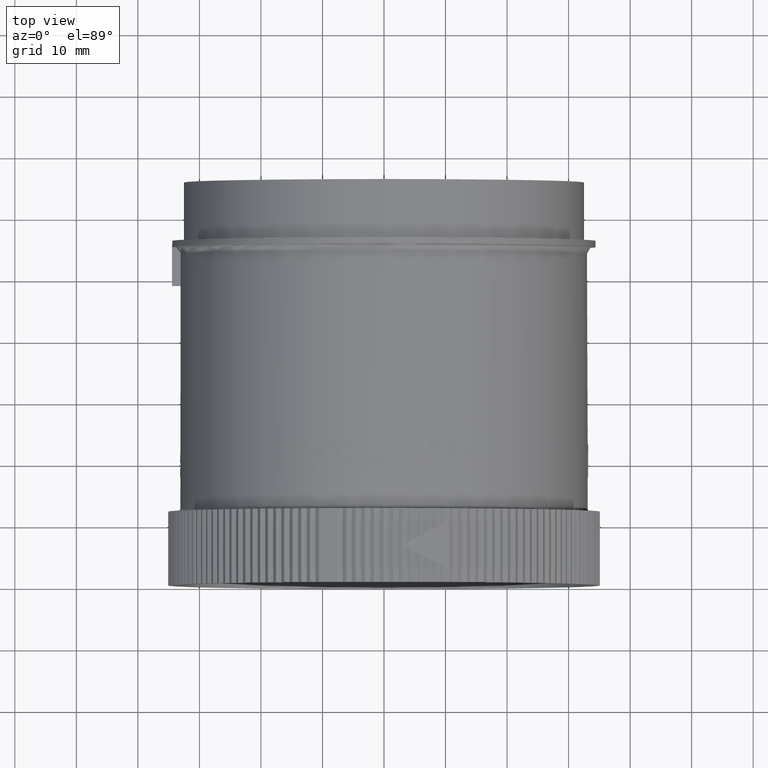
[diagram: clean part render]
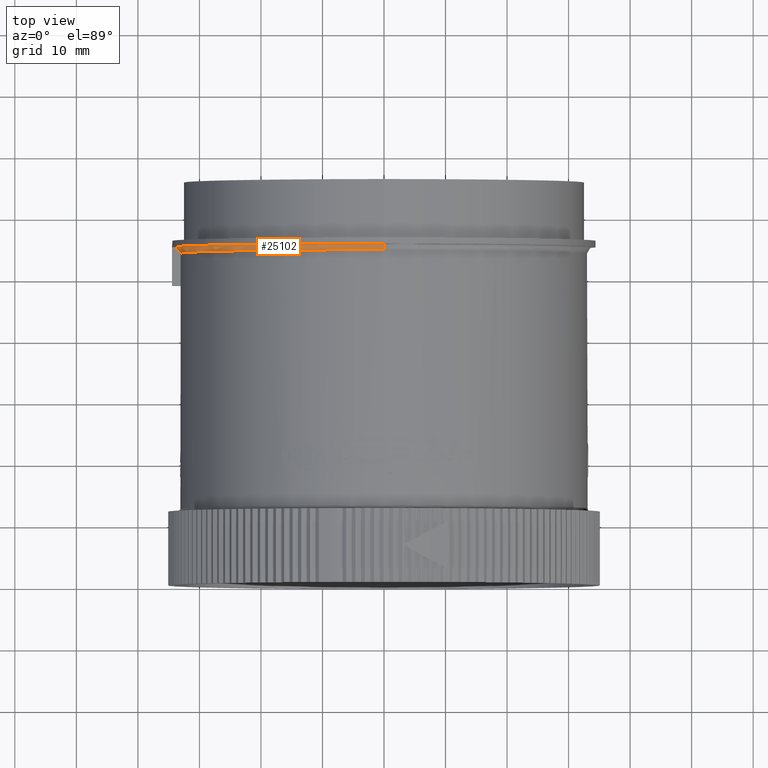
[diagram: same view with one face highlighted and labeled with its STEP entity id]
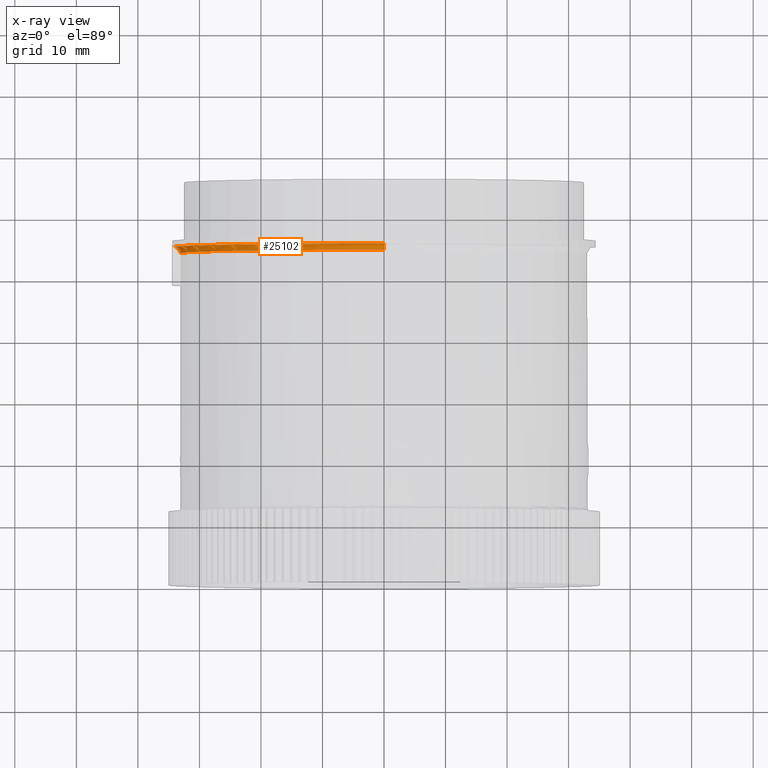
[diagram: x-ray of the same camera — body ghosted, the highlighted face saturated]
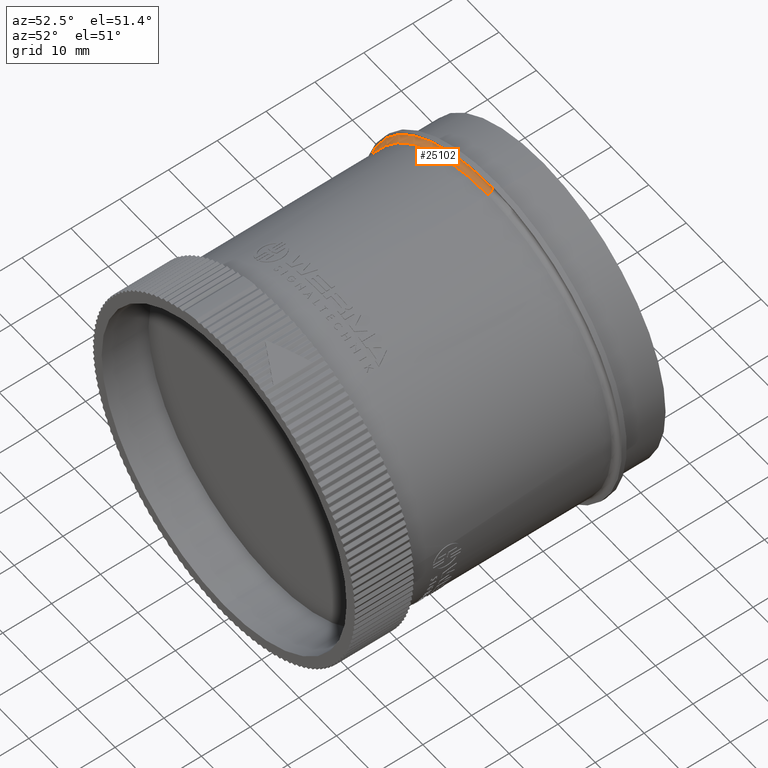
[diagram: same view with one face highlighted and labeled with its STEP entity id]
A machine part, top view. The second image highlights one B-rep face of the part: STEP entity #25102.
The next image is the same camera in x-ray: the body ghosted, the highlighted face saturated — about 0% of this face is hidden behind the body in this view.
A second angle (auxiliary view) of the same face is appended — the face is thin or edge-on in the first view.
In plain terms, the highlighted toroidal blend (fillet) surface has major radius 34.1 mm and minor (blend) radius 1 mm.
Its self-contained STEP definition (entity closure, byte-faithful):
#80 = CARTESIAN_POINT ( 'NONE',  ( -0.9742893487748062200, 2.165354330288136200, 0.9236530025202771600 ) ) ;
#238 = CARTESIAN_POINT ( 'NONE',  ( -1.019327514058452600, 2.165354330683337800, 0.8736901339705761500 ) ) ;
#419 = CARTESIAN_POINT ( 'NONE',  ( -1.100990989712407300, 2.165354326800601500, 0.7682610589161195100 ) ) ;
#583 = CARTESIAN_POINT ( 'NONE',  ( -1.325017869444645700, 2.165354330538104700, 0.2161023569294309700 ) ) ;
#777 = CARTESIAN_POINT ( 'NONE',  ( -1.340801292736586000, 2.165354330708661600, -0.06790433059908786200 ) ) ;
#2908 = DIRECTION ( 'NONE',  ( 1.000000000000000000, 0.0000000000000000000, -1.224646799147353200E-016 ) ) ;
#3207 = CARTESIAN_POINT ( 'NONE',  ( -0.04526540282493161200, 2.165354330703432000, 1.341947927770122300 ) ) ;
#3369 = CARTESIAN_POINT ( 'NONE',  ( -0.3010508282006850700, 2.165354330694854400, 1.308345169931262700 ) ) ;
#3547 = CARTESIAN_POINT ( 'NONE',  ( -0.6404438276518083000, 2.165354329249574100, 1.179924392264754200 ) ) ;
#3717 = CARTESIAN_POINT ( 'NONE',  ( -0.7877838488346390300, 2.165354330683646500, 1.087087958277496200 ) ) ;
#3886 = CARTESIAN_POINT ( 'NONE',  ( -0.9271624493506186400, 2.165354326937328500, 0.9709661784480271300 ) ) ;
#3981 = AXIS2_PLACEMENT_3D ( 'NONE', #26153, #2908, #30009 ) ;
#4035 = CARTESIAN_POINT ( 'NONE',  ( -0.9792377485525118900, 2.165354330474123400, 0.9184145093679732000 ) ) ;
#4208 = CARTESIAN_POINT ( 'NONE',  ( -1.070563958187040500, 2.165354329128319000, 0.8104147730703691300 ) ) ;
#4361 = CARTESIAN_POINT ( 'NONE',  ( -1.102795254503520500, 2.165354326894434000, 0.7656741148028392000 ) ) ;
#4510 = CARTESIAN_POINT ( 'NONE',  ( -1.325592232466835900, 2.165354330530969900, 0.2125438806328392400 ) ) ;
#5292 = EDGE_CURVE ( 'NONE', #18249, #18022, #23170, .T. ) ;
#5348 = DIRECTION ( 'NONE',  ( 0.0000000000000000000, 0.0000000000000000000, -1.000000000000000000 ) ) ;
#6661 = VERTEX_POINT ( 'NONE', #34568 ) ;
#7125 = CARTESIAN_POINT ( 'NONE',  ( -0.08057775640836990800, 2.165354330708350300, 1.340115233404598500 ) ) ;
#7306 = CARTESIAN_POINT ( 'NONE',  ( -0.3100645950903062100, 2.165354330687038400, 1.306225212710316700 ) ) ;
#7365 = B_SPLINE_CURVE_WITH_KNOTS ( 'NONE', 3,
 ( #10812, #26278, #3207, #30321, #7125, #34212, #10980, #38132, #14896, #42027, #18848, #45931, #22729, #49839, #26617, #3369, #30494, #7306, #34377, #11142, #38300, #15080, #42188, #19007, #46114, #22905, #49989, #26793, #3547, #30654, #7455, #34546, #11311, #38466, #15238, #42355, #19159, #46276, #23074, #50158, #26949, #3717, #30827, #7621, #34705, #11488, #38624, #15405, #42518, #19331, #46451, #23233, #50324, #27113, #3886, #30990, #7782, #34872, #11648, #38789, #15568, #42692, #19492, #46607, #23391, #80, #27276, #4035, #31139, #7951, #35040, #11821, #38956, #15745, #42853, #19658, #46778, #23560, #238, #27436, #4208, #31298, #8102, #35203, #11989, #39110, #15906, #43025, #19816, #46939, #23729, #419, #27589, #4361, #31474, #8261, #35356, #12162, #39280, #16065, #43177, #19997, #47085, #23880, #583, #27759, #4510, #31629, #8421, #35518, #12319, #39436, #16234, #43337 ),
 .UNSPECIFIED., .F., .F.,
 ( 4, 2, 1, 2, 2, 1, 2, 2, 1, 1, 2, 2, 1, 2, 2, 2, 2, 2, 1, 2, 2, 2, 2, 1, 2, 2, 1, 1, 1, 2, 1, 2, 2, 2, 2, 2, 1, 1, 2, 2, 1, 1, 1, 2, 1, 1, 1, 1, 2, 2, 2, 2, 2, 1, 1, 1, 2, 2, 1, 1, 2, 2, 2, 2, 1, 1, 2, 2, 1, 2, 4 ),
 ( 0.7388771359579752200, 0.7470372254592757600, 0.7490772478346009500, 0.7495872534284321300, 0.7500972590222634300, 0.7511172702099260200, 0.7551973149605762900, 0.7715174939631774800, 0.7755975387138277500, 0.7776375610891529400, 0.7781475666829841300, 0.7786575722768154200, 0.7796775834644779100, 0.7878376729657780000, 0.8041578519683781900, 0.8204780309709782700, 0.8209880365648095600, 0.8214980421586407500, 0.8225180533463032400, 0.8245580757216282000, 0.8286381204722781400, 0.8367982099735781200, 0.8408782547242280600, 0.8413882603180593600, 0.8416432631149749500, 0.8418982659118906500, 0.8429182770995531400, 0.8449582994748779900, 0.8531183889761777600, 0.8612784784774775200, 0.8617884840713088100, 0.8620434868682243000, 0.8622984896651398900, 0.8633185008528020400, 0.8653585232281262300, 0.8694385679787743900, 0.8696935707756898700, 0.8698210721741477200, 0.8698848228733766500, 0.8699485735726055800, 0.8704585791664368700, 0.8714785903540995800, 0.8735186127294249900, 0.8755586351047502900, 0.8765786462924130000, 0.8770886518862444100, 0.8773436546831601100, 0.8774711560816178500, 0.8775349067808466700, 0.8775986574800755900, 0.8857587469813728000, 0.8898387917320212900, 0.8918788141073456000, 0.8923888197011768900, 0.8926438224980924900, 0.8927713238965501200, 0.8928350745957781600, 0.8928669499453927300, 0.8928988252950073000, 0.8939188364826737800, 0.9020789259840065200, 0.9347192839893372400, 0.9510394629920025900, 0.9591995524933353300, 0.9632795972440015800, 0.9637896028378348800, 0.9640446056347515800, 0.9642996084316681800, 0.9653196196193347700, 0.9673596419946680600, 1.000000000000000000 ),
 .UNSPECIFIED. ) ;
#7455 = CARTESIAN_POINT ( 'NONE',  ( -0.6449270201042965900, 2.165354329214985700, 1.177481644120977400 ) ) ;
#7621 = CARTESIAN_POINT ( 'NONE',  ( -0.7899002912775492400, 2.165354330692870600, 1.085550638143497600 ) ) ;
#7782 = CARTESIAN_POINT ( 'NONE',  ( -0.9300548198885791900, 2.165354327019336300, 0.9681981402938633100 ) ) ;
#7951 = CARTESIAN_POINT ( 'NONE',  ( -0.9979296995220104900, 2.165354330709492900, 0.8981123409868685400 ) ) ;
#8081 = DIRECTION ( 'NONE',  ( 0.0000000000000000000, -1.000000000000000000, 0.0000000000000000000 ) ) ;
#8102 = CARTESIAN_POINT ( 'NONE',  ( -1.094774309043304000, 2.165354327293985500, 0.7771078619037151700 ) ) ;
#8261 = CARTESIAN_POINT ( 'NONE',  ( -1.131777844238998700, 2.165354328226868600, 0.7225011359037255600 ) ) ;
#8421 = CARTESIAN_POINT ( 'NONE',  ( -1.326237509777769200, 2.165354330522597100, 0.2084959449668439000 ) ) ;
#9336 = EDGE_CURVE ( 'NONE', #18249, #6661, #39788, .T. ) ;
#9527 = CARTESIAN_POINT ( 'NONE',  ( -1.301553854036118500, 2.131185052173048900, -0.06447062464036854000 ) ) ;
#10812 = CARTESIAN_POINT ( 'NONE',  ( 8.232191759414506100E-016, 2.165354330684174900, 1.342521073599199900 ) ) ;
#10980 = CARTESIAN_POINT ( 'NONE',  ( -0.09045708457970551300, 2.165354330708655800, 1.339469561443654300 ) ) ;
#11142 = CARTESIAN_POINT ( 'NONE',  ( -0.3154188944672008400, 2.165354330681709300, 1.304945161543382900 ) ) ;
#11311 = CARTESIAN_POINT ( 'NONE',  ( -0.6577643430558157700, 2.165354329164086000, 1.170367717918929800 ) ) ;
#11488 = CARTESIAN_POINT ( 'NONE',  ( -0.8000853213309151400, 2.165354330714727400, 1.078092700463577600 ) ) ;
#11648 = CARTESIAN_POINT ( 'NONE',  ( -0.9433197491915621400, 2.165354328160813400, 0.9553240508953112500 ) ) ;
#11691 = ORIENTED_EDGE ( 'NONE', *, *, #21869, .F. ) ;
#11821 = CARTESIAN_POINT ( 'NONE',  ( -1.010923517025931600, 2.165354330706744000, 0.8834031915559164000 ) ) ;
#11989 = CARTESIAN_POINT ( 'NONE',  ( -1.100000910082604000, 2.165354326858329500, 0.7696783209108124500 ) ) ;
#12162 = CARTESIAN_POINT ( 'NONE',  ( -1.232327983480867400, 2.165354330489520000, 0.5406047045348980600 ) ) ;
#12319 = CARTESIAN_POINT ( 'NONE',  ( -1.328635782677326700, 2.165354330492130800, 0.1926800030726700800 ) ) ;
#12971 = CARTESIAN_POINT ( 'NONE',  ( 3.299849352701120300E-016, 2.125984251968504600, -2.731847993664263200E-016 ) ) ;
#13446 = CARTESIAN_POINT ( 'NONE',  ( -1.306512044481495500, 2.145821182072548300, -0.06490441009594158400 ) ) ;
#14896 = CARTESIAN_POINT ( 'NONE',  ( -0.09586606918803272600, 2.165354330708648200, 1.339095089447631000 ) ) ;
#15080 = CARTESIAN_POINT ( 'NONE',  ( -0.3645099957686052700, 2.165354330609182500, 1.292287462757463400 ) ) ;
#15238 = CARTESIAN_POINT ( 'NONE',  ( -0.6801786475630424700, 2.165354329237356700, 1.157526021903401800 ) ) ;
#15349 = EDGE_LOOP ( 'NONE', ( #18436, #43262, #16579, #11691 ) ) ;
#15405 = CARTESIAN_POINT ( 'NONE',  ( -0.8679548128837306600, 2.165354330873835200, 1.025039527454213700 ) ) ;
#15568 = CARTESIAN_POINT ( 'NONE',  ( -0.9699245421897408900, 2.165354330086652900, 0.9282381337614859000 ) ) ;
#15745 = CARTESIAN_POINT ( 'NONE',  ( -1.016440027420125700, 2.165354330698293400, 0.8770484413684773700 ) ) ;
#15906 = CARTESIAN_POINT ( 'NONE',  ( -1.100824142011791000, 2.165354326804134200, 0.7685001102153361500 ) ) ;
#16065 = CARTESIAN_POINT ( 'NONE',  ( -1.292461904351330800, 2.165354330655784300, 0.3661086627473657000 ) ) ;
#16234 = CARTESIAN_POINT ( 'NONE',  ( -1.345120647165945400, 2.165354330708661600, 0.01730177572992125700 ) ) ;
#16579 = ORIENTED_EDGE ( 'NONE', *, *, #42650, .T. ) ;
#17359 = CARTESIAN_POINT ( 'NONE',  ( -1.320280472381469400, 2.161079493222126200, -0.06610899145176338300 ) ) ;
#18022 = VERTEX_POINT ( 'NONE', #20477 ) ;
#18249 = VERTEX_POINT ( 'NONE', #41287 ) ;
#18436 = ORIENTED_EDGE ( 'NONE', *, *, #9336, .F. ) ;
#18848 = CARTESIAN_POINT ( 'NONE',  ( -0.1222382923656246700, 2.165354330706792400, 1.336984607427734700 ) ) ;
#19007 = CARTESIAN_POINT ( 'NONE',  ( -0.4717515419067514500, 2.165354330281368700, 1.257718565591191300 ) ) ;
#19159 = CARTESIAN_POINT ( 'NONE',  ( -0.7286567138731510100, 2.165354329928790300, 1.127869536743203000 ) ) ;
#19331 = CARTESIAN_POINT ( 'NONE',  ( -0.9217916218879117500, 2.165354327794348300, 0.9760646518782289900 ) ) ;
#19492 = CARTESIAN_POINT ( 'NONE',  ( -0.9729729234558849300, 2.165354330231410400, 0.9250405955273716100 ) ) ;
#19658 = CARTESIAN_POINT ( 'NONE',  ( -1.018559040185200700, 2.165354330688271200, 0.8745857046653126000 ) ) ;
#19816 = CARTESIAN_POINT ( 'NONE',  ( -1.100974930334218900, 2.165354326800161800, 0.7682840697263716400 ) ) ;
#19997 = CARTESIAN_POINT ( 'NONE',  ( -1.313969806637658800, 2.165354330622136600, 0.2763723946039438100 ) ) ;
#20477 = CARTESIAN_POINT ( 'NONE',  ( 8.232191759414506100E-016, 2.165354330684174900, 1.342521073599199900 ) ) ;
#21254 = CARTESIAN_POINT ( 'NONE',  ( -1.340801292736586000, 2.165354330708661600, -0.06790433059908786200 ) ) ;
#21517 = AXIS2_PLACEMENT_3D ( 'NONE', #12971, #28555, #5348 ) ;
#21869 = EDGE_CURVE ( 'NONE', #6661, #24577, #30535, .T. ) ;
#22729 = CARTESIAN_POINT ( 'NONE',  ( -0.2168157201061218000, 2.165354330710730600, 1.325571672267577700 ) ) ;
#22905 = CARTESIAN_POINT ( 'NONE',  ( -0.5957935004600031200, 2.165354329592471800, 1.203929019359685700 ) ) ;
#23074 = CARTESIAN_POINT ( 'NONE',  ( -0.7711855189929874800, 2.165354330571573400, 1.099011661915881800 ) ) ;
#23170 = CIRCLE ( 'NONE', #3981, 0.03937007874015724400 ) ;
#23233 = CARTESIAN_POINT ( 'NONE',  ( -0.9250260834832781900, 2.165354327292367200, 0.9730007414317770600 ) ) ;
#23391 = CARTESIAN_POINT ( 'NONE',  ( -0.9741714230929317000, 2.165354330283203700, 0.9237774662040154600 ) ) ;
#23560 = CARTESIAN_POINT ( 'NONE',  ( -1.019055988454402200, 2.165354330685141300, 0.8740066788863767300 ) ) ;
#23729 = CARTESIAN_POINT ( 'NONE',  ( -1.100993091746117000, 2.165354326800711600, 0.7682580407834886900 ) ) ;
#23880 = CARTESIAN_POINT ( 'NONE',  ( -1.322798272168206300, 2.165354330563970200, 0.2296185553213500000 ) ) ;
#24577 = VERTEX_POINT ( 'NONE', #777 ) ;
#25102 = ADVANCED_FACE ( 'NONE', ( #46932 ), #48123, .F. ) ;
#26153 = CARTESIAN_POINT ( 'NONE',  ( 4.943961787776898100E-016, 2.125984251968504600, 1.342519685039370100 ) ) ;
#26278 = CARTESIAN_POINT ( 'NONE',  ( -0.02263348265233380100, 2.165354330695593400, 1.342520749846361200 ) ) ;
#26617 = CARTESIAN_POINT ( 'NONE',  ( -0.2842804573451362900, 2.165354330705083100, 1.312151439710008500 ) ) ;
#26793 = CARTESIAN_POINT ( 'NONE',  ( -0.6379671687329487900, 2.165354329268777400, 1.181265240932991100 ) ) ;
#26949 = CARTESIAN_POINT ( 'NONE',  ( -0.7856980980466665700, 2.165354330673247200, 1.088598769222376000 ) ) ;
#27113 = CARTESIAN_POINT ( 'NONE',  ( -0.9268100203980554900, 2.165354326988516000, 0.9713023500479233100 ) ) ;
#27276 = CARTESIAN_POINT ( 'NONE',  ( -0.9756511871472839400, 2.165354330344574600, 0.9222154684951025000 ) ) ;
#27436 = CARTESIAN_POINT ( 'NONE',  ( -1.049928167669044400, 2.165354330467391900, 0.8379779242338451000 ) ) ;
#27589 = CARTESIAN_POINT ( 'NONE',  ( -1.101094104587546900, 2.165354326805967400, 0.7681132433240907000 ) ) ;
#27759 = CARTESIAN_POINT ( 'NONE',  ( -1.325363175070954700, 2.165354330533847200, 0.2139673818468782500 ) ) ;
#28555 = DIRECTION ( 'NONE',  ( 0.0000000000000000000, -1.000000000000000000, -0.0000000000000000000 ) ) ;
#30009 = DIRECTION ( 'NONE',  ( -1.224646799147357900E-016, 0.0000000000000000000, -1.000000000000000000 ) ) ;
#30321 = CARTESIAN_POINT ( 'NONE',  ( -0.07351719097430581300, 2.165354330707646800, 1.340517485852777500 ) ) ;
#30494 = CARTESIAN_POINT ( 'NONE',  ( -0.3074898751879744400, 2.165354330689366800, 1.306833632187775200 ) ) ;
#30535 = B_SPLINE_CURVE_WITH_KNOTS ( 'NONE', 3,
 ( #44299, #9527, #36640, #13446, #40533, #17359, #44464, #21254 ),
 .UNSPECIFIED., .F., .F.,
 ( 4, 2, 2, 4 ),
 ( 0.0000000000000000000, 0.0003906744150210493500, 0.0007813488300420987100, 0.001562697660084182500 ),
 .UNSPECIFIED. ) ;
#30654 = CARTESIAN_POINT ( 'NONE',  ( -0.6417942767539379600, 2.165354329238869700, 1.179190193041978400 ) ) ;
#30827 = CARTESIAN_POINT ( 'NONE',  ( -0.7891760966482547200, 2.165354330689944500, 1.086077438586683600 ) ) ;
#30990 = CARTESIAN_POINT ( 'NONE',  ( -0.9276969907087789800, 2.165354326931387500, 0.9704560211732700100 ) ) ;
#31139 = CARTESIAN_POINT ( 'NONE',  ( -0.9872943915391421100, 2.165354330656074700, 0.9097761188158114400 ) ) ;
#31285 = CARTESIAN_POINT ( 'NONE',  ( 0.0000000000000000000, 2.125984251968504600, 0.0000000000000000000 ) ) ;
#31298 = CARTESIAN_POINT ( 'NONE',  ( -1.090156878817419800, 2.165354327693855400, 0.7836331773576228300 ) ) ;
#31474 = CARTESIAN_POINT ( 'NONE',  ( -1.117622250462129200, 2.165354327648428600, 0.7442637927782324000 ) ) ;
#31629 = CARTESIAN_POINT ( 'NONE',  ( -1.325713337841599500, 2.165354330529415600, 0.2117871153058908700 ) ) ;
#34212 = CARTESIAN_POINT ( 'NONE',  ( -0.08763463984763325600, 2.165354330708595000, 1.339657224428767400 ) ) ;
#34377 = CARTESIAN_POINT ( 'NONE',  ( -0.3113105767084383100, 2.165354330685845600, 1.305928946334495600 ) ) ;
#34546 = CARTESIAN_POINT ( 'NONE',  ( -0.6512542010068206300, 2.165354329175893000, 1.174009249911481800 ) ) ;
#34568 = CARTESIAN_POINT ( 'NONE',  ( -1.301553854036118900, 2.125984251968504600, -0.06447062464036869300 ) ) ;
#34705 = CARTESIAN_POINT ( 'NONE',  ( -0.7929009979383279100, 2.165354330703578500, 1.083364133047741500 ) ) ;
#34872 = CARTESIAN_POINT ( 'NONE',  ( -0.9326334751756135700, 2.165354327221968900, 0.9657241588553856500 ) ) ;
#35040 = CARTESIAN_POINT ( 'NONE',  ( -1.005540212071114300, 2.165354330707853800, 0.8895382557751913000 ) ) ;
#35190 = DIRECTION ( 'NONE',  ( 0.0000000000000000000, 0.0000000000000000000, -1.000000000000000000 ) ) ;
#35203 = CARTESIAN_POINT ( 'NONE',  ( -1.099029310384822800, 2.165354326937628700, 0.7710681023940314500 ) ) ;
#35356 = CARTESIAN_POINT ( 'NONE',  ( -1.192158321662556900, 2.165354330300011600, 0.6242219909116146800 ) ) ;
#35518 = CARTESIAN_POINT ( 'NONE',  ( -1.327471985301668100, 2.165354330506624100, 0.2005933870961090800 ) ) ;
#36640 = CARTESIAN_POINT ( 'NONE',  ( -1.302574356699033800, 2.136288376861007300, -0.06455990705447160700 ) ) ;
#38065 = AXIS2_PLACEMENT_3D ( 'NONE', #31285, #8081, #35190 ) ;
#38132 = CARTESIAN_POINT ( 'NONE',  ( -0.09190721118050955400, 2.165354330708666000, 1.339370726340801700 ) ) ;
#38300 = CARTESIAN_POINT ( 'NONE',  ( -0.3400502329127172400, 2.165354330654791300, 1.298964900399901300 ) ) ;
#38466 = CARTESIAN_POINT ( 'NONE',  ( -0.6710225190533106700, 2.165354329177717300, 1.162850207438789600 ) ) ;
#38624 = CARTESIAN_POINT ( 'NONE',  ( -0.8262350364185655500, 2.165354330634706900, 1.058503380368213100 ) ) ;
#38789 = CARTESIAN_POINT ( 'NONE',  ( -0.9543981697888114200, 2.165354329275528000, 0.9444362389406081300 ) ) ;
#38956 = CARTESIAN_POINT ( 'NONE',  ( -1.013534009418086200, 2.165354330705458400, 0.8804095117186256900 ) ) ;
#39110 = CARTESIAN_POINT ( 'NONE',  ( -1.100665903865627700, 2.165354326813531600, 0.7687267069500797200 ) ) ;
#39280 = CARTESIAN_POINT ( 'NONE',  ( -1.279108443209836300, 2.165354330648432000, 0.4103358920346457100 ) ) ;
#39436 = CARTESIAN_POINT ( 'NONE',  ( -1.341290535707219600, 2.165354330342891000, 0.1029195592994550800 ) ) ;
#39788 = CIRCLE ( 'NONE', #38065, 1.303149606299213200 ) ;
#40533 = CARTESIAN_POINT ( 'NONE',  ( -1.309425971558234600, 2.150187090724086300, -0.06515934568149749100 ) ) ;
#41287 = CARTESIAN_POINT ( 'NONE',  ( 4.920097524065166600E-016, 2.125984251968504600, 1.303149606299213200 ) ) ;
#42027 = CARTESIAN_POINT ( 'NONE',  ( -0.1090595467801634800, 2.165354330708258300, 1.338137303883621300 ) ) ;
#42188 = CARTESIAN_POINT ( 'NONE',  ( -0.4292466917042562800, 2.165354330445849600, 1.272850946982458900 ) ) ;
#42355 = CARTESIAN_POINT ( 'NONE',  ( -0.7085452240125548200, 2.165354329542598800, 1.140541285343075200 ) ) ;
#42518 = CARTESIAN_POINT ( 'NONE',  ( -0.9034128200163834600, 2.165354330362755600, 0.9933736785300799600 ) ) ;
#42650 = EDGE_CURVE ( 'NONE', #18022, #24577, #7365, .T. ) ;
#42692 = CARTESIAN_POINT ( 'NONE',  ( -0.9713150663375566000, 2.165354330155794900, 0.9267832303735260600 ) ) ;
#42853 = CARTESIAN_POINT ( 'NONE',  ( -1.017858443623528100, 2.165354330692145400, 0.8754010676001227100 ) ) ;
#43025 = CARTESIAN_POINT ( 'NONE',  ( -1.100936674994992700, 2.165354326800297700, 0.7683388890370850300 ) ) ;
#43177 = CARTESIAN_POINT ( 'NONE',  ( -1.309025831570293800, 2.165354330635607600, 0.2989132004412307600 ) ) ;
#43262 = ORIENTED_EDGE ( 'NONE', *, *, #5292, .T. ) ;
#43337 = CARTESIAN_POINT ( 'NONE',  ( -1.340801292736586000, 2.165354330708661600, -0.06790433059908786200 ) ) ;
#44299 = CARTESIAN_POINT ( 'NONE',  ( -1.301553854036118900, 2.125984251968504600, -0.06447062464036869300 ) ) ;
#44464 = CARTESIAN_POINT ( 'NONE',  ( -1.330439475420848600, 2.165354330708662500, -0.06699778905043445000 ) ) ;
#45931 = CARTESIAN_POINT ( 'NONE',  ( -0.1748914056154153000, 2.165354330701840400, 1.331751394149051300 ) ) ;
#46114 = CARTESIAN_POINT ( 'NONE',  ( -0.5550250176002077300, 2.165354329854680200, 1.223257572276377900 ) ) ;
#46276 = CARTESIAN_POINT ( 'NONE',  ( -0.7603616254556215800, 2.165354330424055000, 1.106519175478864800 ) ) ;
#46451 = CARTESIAN_POINT ( 'NONE',  ( -0.9234107542665197500, 2.165354327554250600, 0.9745347022895585200 ) ) ;
#46607 = CARTESIAN_POINT ( 'NONE',  ( -0.9736910152178348500, 2.165354330262649500, 0.9242840182983012000 ) ) ;
#46778 = CARTESIAN_POINT ( 'NONE',  ( -1.018857454414139100, 2.165354330686420200, 0.8742380506622506900 ) ) ;
#46932 = FACE_OUTER_BOUND ( 'NONE', #15349, .T. ) ;
#46939 = CARTESIAN_POINT ( 'NONE',  ( -1.100987466668880100, 2.165354326800485100, 0.7682661029427532200 ) ) ;
#47085 = CARTESIAN_POINT ( 'NONE',  ( -1.320509922763951800, 2.165354330582554400, 0.2423925885176183000 ) ) ;
#48123 = TOROIDAL_SURFACE ( 'NONE', #21517, 1.342519685039370400, 0.03937007874015716100 ) ;
#49839 = CARTESIAN_POINT ( 'NONE',  ( -0.2687394450567426900, 2.165354330707906600, 1.315390064313233200 ) ) ;
#49989 = CARTESIAN_POINT ( 'NONE',  ( -0.6367277845101070300, 2.165354329278338200, 1.181933716912959100 ) ) ;
#50158 = CARTESIAN_POINT ( 'NONE',  ( -0.7836202728179353400, 2.165354330660128400, 1.090094736524705300 ) ) ;
#50324 = CARTESIAN_POINT ( 'NONE',  ( -0.9261021230131399900, 2.165354327112755300, 0.9719772108632760400 ) ) ;